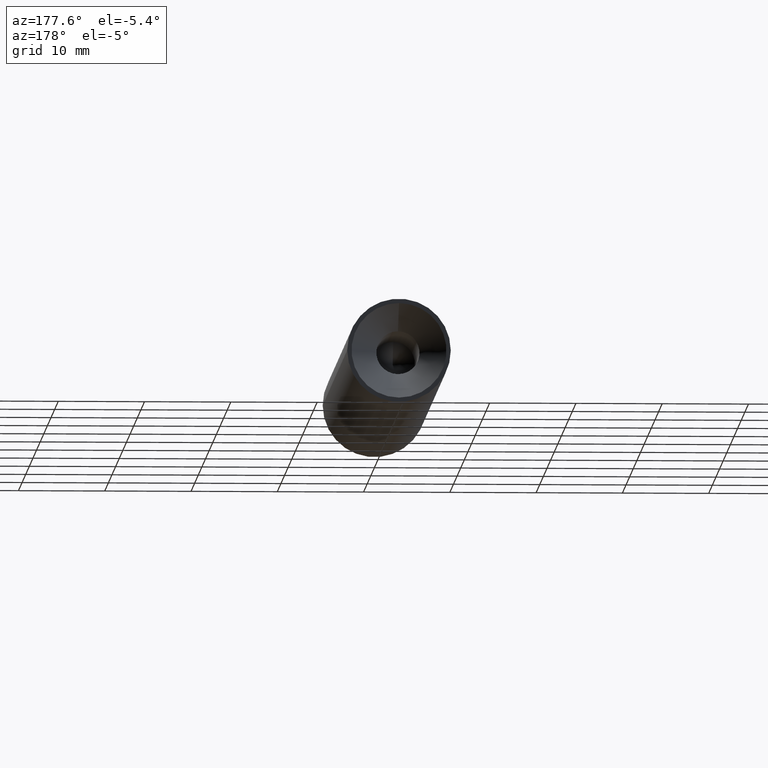
[diagram: clean part render]
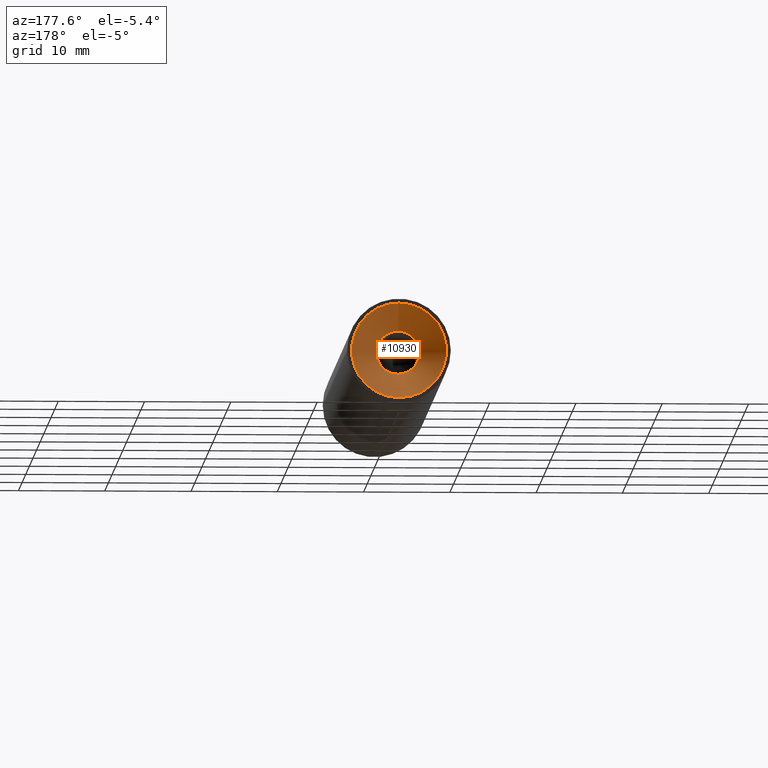
[diagram: same view with one face highlighted and labeled with its STEP entity id]
A machine part, auxiliary view. The second image highlights one B-rep face of the part: STEP entity #10930.
In plain terms, the highlighted conical surface has half-angle 45 deg.
Its self-contained STEP definition (entity closure, byte-faithful):
#365 = DIRECTION ( 'NONE',  ( 0.000000000000000000, -1.000000000000000000, 0.000000000000000000 ) ) ;
#640 = DIRECTION ( 'NONE',  ( -0.000000000000000000, 1.000000000000000000, -0.000000000000000000 ) ) ;
#2233 = AXIS2_PLACEMENT_3D ( 'NONE', #6692, #365, #8813 ) ;
#2358 = CARTESIAN_POINT ( 'NONE',  ( -1.577870315883518554E-31, 68.00000000000000000, 0.000000000000000000 ) ) ;
#2838 = AXIS2_PLACEMENT_3D ( 'NONE', #8079, #640, #3696 ) ;
#3521 = DIRECTION ( 'NONE',  ( 0.000000000000000000, 0.000000000000000000, 1.000000000000000000 ) ) ;
#3696 = DIRECTION ( 'NONE',  ( 0.000000000000000000, 0.000000000000000000, 1.000000000000000000 ) ) ;
#4588 = EDGE_CURVE ( 'NONE', #11869, #11869, #12788, .T. ) ;
#5548 = CARTESIAN_POINT ( 'NONE',  ( -1.577870315883518554E-31, 65.00000000000000000, 2.499999999999992895 ) ) ;
#6245 = ORIENTED_EDGE ( 'NONE', *, *, #4588, .T. ) ;
#6528 = CONICAL_SURFACE ( 'NONE', #2838, 5.500000000000000000, 0.7853981633974479459 ) ;
#6692 = CARTESIAN_POINT ( 'NONE',  ( -1.577870315883518554E-31, 65.00000000000000000, 0.000000000000000000 ) ) ;
#7175 = EDGE_LOOP ( 'NONE', ( #9302 ) ) ;
#7520 = CARTESIAN_POINT ( 'NONE',  ( -1.577870315883518554E-31, 68.00000000000000000, 5.500000000000000000 ) ) ;
#7930 = VERTEX_POINT ( 'NONE', #7520 ) ;
#8079 = CARTESIAN_POINT ( 'NONE',  ( -1.577870315883518554E-31, 68.00000000000000000, 0.000000000000000000 ) ) ;
#8757 = EDGE_CURVE ( 'NONE', #7930, #7930, #9728, .T. ) ;
#8813 = DIRECTION ( 'NONE',  ( 0.000000000000000000, 0.000000000000000000, 1.000000000000000000 ) ) ;
#9302 = ORIENTED_EDGE ( 'NONE', *, *, #8757, .T. ) ;
#9490 = FACE_BOUND ( 'NONE', #11367, .T. ) ;
#9728 = CIRCLE ( 'NONE', #11316, 5.500000000000000000 ) ;
#9786 = DIRECTION ( 'NONE',  ( -0.000000000000000000, 1.000000000000000000, -0.000000000000000000 ) ) ;
#9826 = FACE_OUTER_BOUND ( 'NONE', #7175, .T. ) ;
#10930 = ADVANCED_FACE ( 'NONE', ( #9490, #9826 ), #6528, .F. ) ;
#11316 = AXIS2_PLACEMENT_3D ( 'NONE', #2358, #9786, #3521 ) ;
#11367 = EDGE_LOOP ( 'NONE', ( #6245 ) ) ;
#11869 = VERTEX_POINT ( 'NONE', #5548 ) ;
#12788 = CIRCLE ( 'NONE', #2233, 2.499999999999992895 ) ;